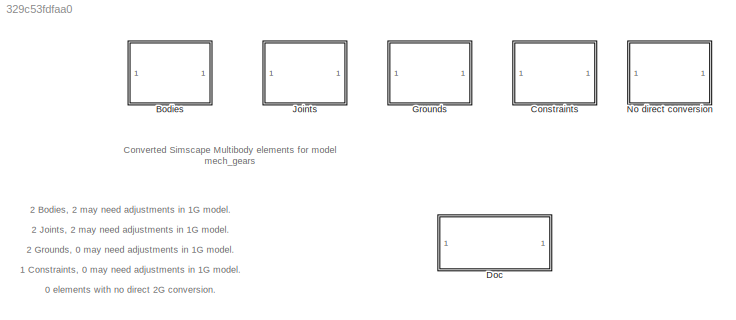
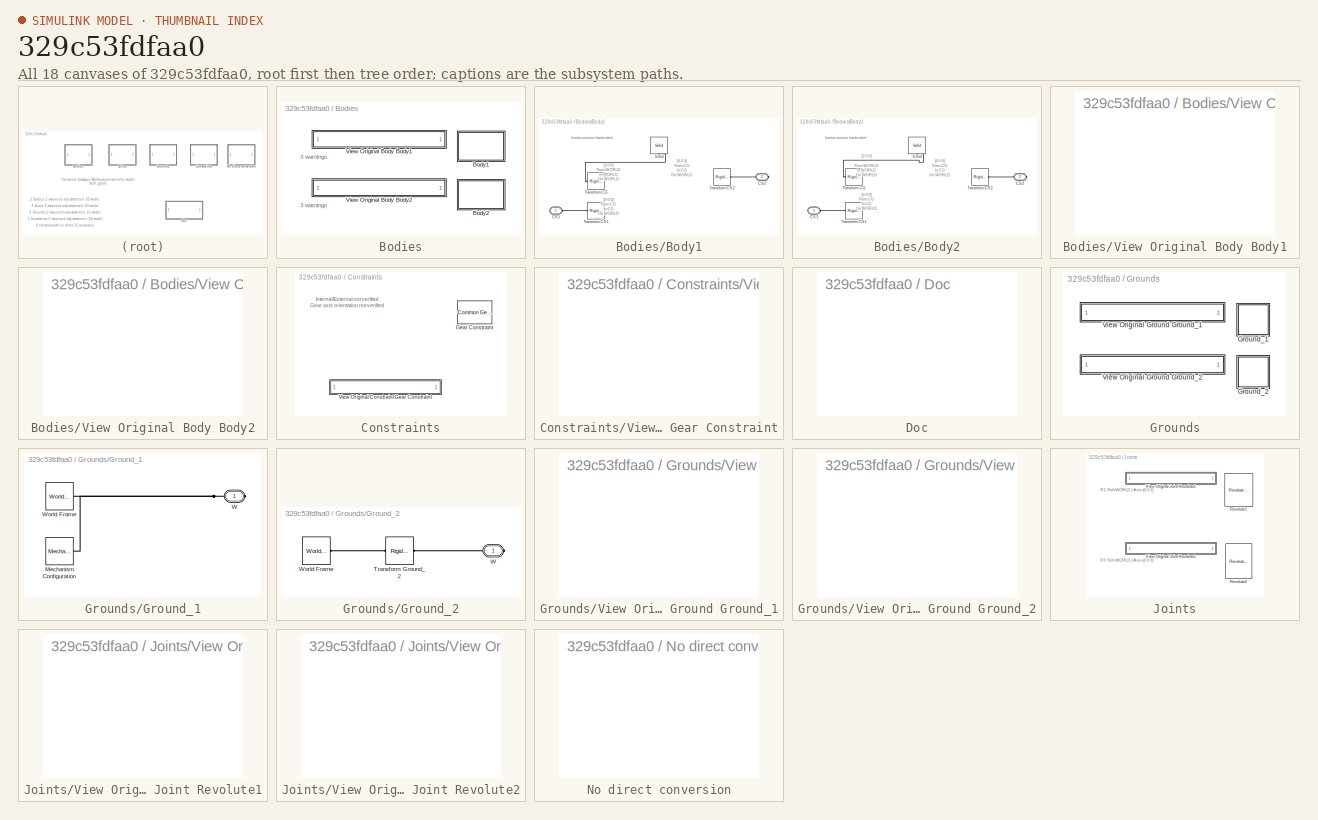
[diagram: thumbnail index - all 18 canvases of the model, root first then tree order]
MODEL slx_329c53fdfaa0
KIND model
CONFIG AbsTol = auto
CONFIG EnableMultiTasking = on
CONFIG FixedStep = auto
CONFIG MaxStep = auto
CONFIG MinStep = auto
CONFIG RelTol = 1e-3
CONFIG SampleTimeConstraint = Unconstrained
CONFIG Solver = ode45
CONFIG SolverName = ode45
CONFIG StartTime = 0.0
CONFIG StopTime = 10.0
BLOCK [SubSystem] Bodies
  Ports = []
  RequestExecContextInheritance = off
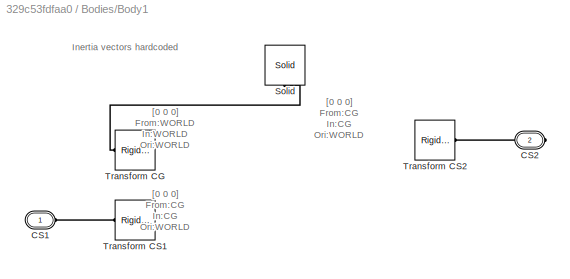
BLOCK [SubSystem] Bodies/Body1
  Ports = [0, 0, 0, 0, 0, 1, 1]
  RequestExecContextInheritance = off
BLOCK [PMIOPort] Bodies/Body1/CS1
  Side = Left
BLOCK [PMIOPort] Bodies/Body1/CS2
  Port = 2
  Side = Right
BLOCK [Reference] Bodies/Body1/Solid  REF=sm_lib/Body Elements/Solid
  Ports = [0, 0, 0, 0, 0, 0, 1]
  SourceBlock = sm_lib/Body Elements/Solid
  SourceProductBaseCode = MS
  SourceProductName = Simscape Multibody
  SourceType = Solid
BLOCK [Reference] Bodies/Body1/Transform CG  REF=sm_lib/Frames and
Transforms/Rigid
Transform
  Ports = [0, 0, 0, 0, 0, 1, 1]
  SourceBlock = sm_lib/Frames and\nTransforms/Rigid\nTransform
  SourceProductBaseCode = MS
  SourceProductName = Simscape Multibody
  SourceType = Rigid\nTransform
BLOCK [Reference] Bodies/Body1/Transform CS1  REF=sm_lib/Frames and
Transforms/Rigid
Transform
  Ports = [0, 0, 0, 0, 0, 1, 1]
  SourceBlock = sm_lib/Frames and\nTransforms/Rigid\nTransform
  SourceProductBaseCode = MS
  SourceProductName = Simscape Multibody
  SourceType = Rigid\nTransform
BLOCK [Reference] Bodies/Body1/Transform CS2  REF=sm_lib/Frames and
Transforms/Rigid
Transform
  Ports = [0, 0, 0, 0, 0, 1, 1]
  SourceBlock = sm_lib/Frames and\nTransforms/Rigid\nTransform
  SourceProductBaseCode = MS
  SourceProductName = Simscape Multibody
  SourceType = Rigid\nTransform
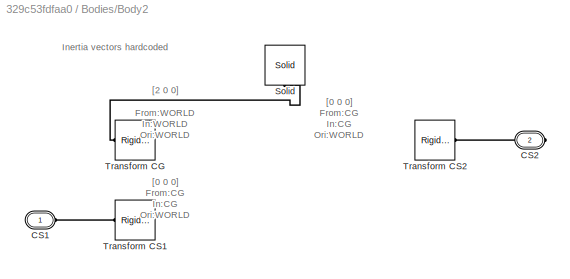
BLOCK [SubSystem] Bodies/Body2
  Ports = [0, 0, 0, 0, 0, 1, 1]
  RequestExecContextInheritance = off
BLOCK [PMIOPort] Bodies/Body2/CS1
  Side = Left
BLOCK [PMIOPort] Bodies/Body2/CS2
  Port = 2
  Side = Right
BLOCK [Reference] Bodies/Body2/Solid  REF=sm_lib/Body Elements/Solid
  Ports = [0, 0, 0, 0, 0, 0, 1]
  SourceBlock = sm_lib/Body Elements/Solid
  SourceProductBaseCode = MS
  SourceProductName = Simscape Multibody
  SourceType = Solid
BLOCK [Reference] Bodies/Body2/Transform CG  REF=sm_lib/Frames and
Transforms/Rigid
Transform
  Ports = [0, 0, 0, 0, 0, 1, 1]
  SourceBlock = sm_lib/Frames and\nTransforms/Rigid\nTransform
  SourceProductBaseCode = MS
  SourceProductName = Simscape Multibody
  SourceType = Rigid\nTransform
BLOCK [Reference] Bodies/Body2/Transform CS1  REF=sm_lib/Frames and
Transforms/Rigid
Transform
  Ports = [0, 0, 0, 0, 0, 1, 1]
  SourceBlock = sm_lib/Frames and\nTransforms/Rigid\nTransform
  SourceProductBaseCode = MS
  SourceProductName = Simscape Multibody
  SourceType = Rigid\nTransform
BLOCK [Reference] Bodies/Body2/Transform CS2  REF=sm_lib/Frames and
Transforms/Rigid
Transform
  Ports = [0, 0, 0, 0, 0, 1, 1]
  SourceBlock = sm_lib/Frames and\nTransforms/Rigid\nTransform
  SourceProductBaseCode = MS
  SourceProductName = Simscape Multibody
  SourceType = Rigid\nTransform
BLOCK [SubSystem] Bodies/View Original Body Body1
  OpenFcn = hilite_system('mech_gears/Body1');
  Ports = []
  RequestExecContextInheritance = off
BLOCK [SubSystem] Bodies/View Original Body Body2
  OpenFcn = hilite_system('mech_gears/Body2');
  Ports = []
  RequestExecContextInheritance = off
BLOCK [SubSystem] Constraints
  Ports = []
  RequestExecContextInheritance = off
BLOCK [Reference] Constraints/Gear Constraint  REF=sm_lib/Gears and
Couplings/Gears/Common Gear
Constraint
  Ports = [0, 0, 0, 0, 0, 1, 1]
  SourceBlock = sm_lib/Gears and\nCouplings/Gears/Common Gear\nConstraint
  SourceProductBaseCode = MS
  SourceProductName = Simscape Multibody
  SourceType = Common Gear\nConstraint
BLOCK [SubSystem] Constraints/View Original Constraint Gear Constraint
  OpenFcn = hilite_system('mech_gears/Gear Constraint');
  Ports = []
  RequestExecContextInheritance = off
BLOCK [SubSystem] Doc
  OpenFcn = web('SM1G2G_Warnings_Help.html');
  Ports = []
  RequestExecContextInheritance = off
BLOCK [SubSystem] Grounds
  Ports = []
  RequestExecContextInheritance = off
BLOCK [SubSystem] Grounds/Ground_1
  Ports = [0, 0, 0, 0, 0, 0, 1]
  RequestExecContextInheritance = off
BLOCK [Reference] Grounds/Ground_1/Mechanism Configuration  REF=sm_lib/Utilities/Mechanism
Configuration
  Ports = [0, 0, 0, 0, 0, 0, 1]
  SourceBlock = sm_lib/Utilities/Mechanism\nConfiguration
  SourceProductBaseCode = MS
  SourceProductName = Simscape Multibody
  SourceType = Mechanism\nConfiguration
BLOCK [PMIOPort] Grounds/Ground_1/W
  Side = Right
BLOCK [Reference] Grounds/Ground_1/World Frame  REF=sm_lib/Frames and
Transforms/World Frame
  Ports = [0, 0, 0, 0, 0, 0, 1]
  SourceBlock = sm_lib/Frames and\nTransforms/World Frame
  SourceProductBaseCode = MS
  SourceProductName = Simscape Multibody
  SourceType = World Frame
BLOCK [SubSystem] Grounds/Ground_2
  Ports = [0, 0, 0, 0, 0, 0, 1]
  RequestExecContextInheritance = off
BLOCK [Reference] Grounds/Ground_2/Transform Ground_2  REF=sm_lib/Frames and
Transforms/Rigid
Transform
  Ports = [0, 0, 0, 0, 0, 1, 1]
  SourceBlock = sm_lib/Frames and\nTransforms/Rigid\nTransform
  SourceProductBaseCode = MS
  SourceProductName = Simscape Multibody
  SourceType = Rigid\nTransform
BLOCK [PMIOPort] Grounds/Ground_2/W
  Side = Right
BLOCK [Reference] Grounds/Ground_2/World Frame  REF=sm_lib/Frames and
Transforms/World Frame
  Ports = [0, 0, 0, 0, 0, 0, 1]
  SourceBlock = sm_lib/Frames and\nTransforms/World Frame
  SourceProductBaseCode = MS
  SourceProductName = Simscape Multibody
  SourceType = World Frame
BLOCK [SubSystem] Grounds/View Original Ground Ground_1
  OpenFcn = hilite_system('mech_gears/Ground_1');
  Ports = []
  RequestExecContextInheritance = off
BLOCK [SubSystem] Grounds/View Original Ground Ground_2
  OpenFcn = hilite_system('mech_gears/Ground_2');
  Ports = []
  RequestExecContextInheritance = off
BLOCK [SubSystem] Joints
  Ports = []
  RequestExecContextInheritance = off
BLOCK [Reference] Joints/Revolute1  REF=sm_lib/Joints/Revolute Joint
  Ports = [0, 0, 0, 0, 0, 1, 1]
  SourceBlock = sm_lib/Joints/Revolute Joint
  SourceProductBaseCode = MS
  SourceProductName = Simscape Multibody
  SourceType = Revolute Joint
BLOCK [Reference] Joints/Revolute2  REF=sm_lib/Joints/Revolute Joint
  Ports = [0, 0, 0, 0, 0, 1, 1]
  SourceBlock = sm_lib/Joints/Revolute Joint
  SourceProductBaseCode = MS
  SourceProductName = Simscape Multibody
  SourceType = Revolute Joint
BLOCK [SubSystem] Joints/View Original Joint Revolute1
  OpenFcn = hilite_system('mech_gears/Revolute1');
  Ports = []
  RequestExecContextInheritance = off
BLOCK [SubSystem] Joints/View Original Joint Revolute2
  OpenFcn = hilite_system('mech_gears/Revolute2');
  Ports = []
  RequestExecContextInheritance = off
BLOCK [SubSystem] No direct conversion
  Ports = []
  RequestExecContextInheritance = off
ANNOTATION (root): 0 elements with no direct 2G conversion.
ANNOTATION (root): 1 Constraints, 0 may need adjustments in 1G model.
ANNOTATION (root): 2 Bodies, 2 may need adjustments in 1G model.
ANNOTATION (root): 2 Grounds, 0 may need adjustments in 1G model.
ANNOTATION (root): 2 Joints, 2 may need adjustments in 1G model.
ANNOTATION (root): Converted Simscape Multibody elements for model mech_gears
ANNOTATION Bodies: 3 warnings
ANNOTATION Bodies/Body1: Inertia vectors hardcoded
ANNOTATION Bodies/Body1: [0 0 0] From:CG In:CG Ori:WORLD
ANNOTATION Bodies/Body1: [0 0 0] From:WORLD In:WORLD Ori:WORLD
ANNOTATION Bodies/Body2: Inertia vectors hardcoded
ANNOTATION Bodies/Body2: [0 0 0] From:CG In:CG Ori:WORLD
ANNOTATION Bodies/Body2: [2 0 0] From:WORLD In:WORLD Ori:WORLD
ANNOTATION Constraints: Internal/External not verified Gear axis orientation not verified
ANNOTATION Joints: R1: Ref=WORLD | Axis=[0 0 1]
PLINE Bodies/Body1/CS1:RConn1 -- Bodies/Body1/Transform CS1:RConn1
PLINE Bodies/Body1/CS2:RConn1 -- Bodies/Body1/Transform CS2:RConn1
PLINE Bodies/Body1/Solid:RConn1 -- Bodies/Body1/Transform CG:RConn1
PLINE Bodies/Body2/CS1:RConn1 -- Bodies/Body2/Transform CS1:RConn1
PLINE Bodies/Body2/CS2:RConn1 -- Bodies/Body2/Transform CS2:RConn1
PLINE Bodies/Body2/Solid:RConn1 -- Bodies/Body2/Transform CG:RConn1
PNET net1: Grounds/Ground_1/Mechanism Configuration:RConn1 -- Grounds/Ground_1/W:RConn1 -- Grounds/Ground_1/World Frame:RConn1
PLINE Grounds/Ground_2/Transform Ground_2:LConn1 -- Grounds/Ground_2/World Frame:RConn1
PLINE Grounds/Ground_2/Transform Ground_2:RConn1 -- Grounds/Ground_2/W:RConn1
note: PNET lines group multi-terminal physical nets as a canonical sorted terminal list (undirected conserving connections); 2-terminal nets keep the pairwise PLINE form
